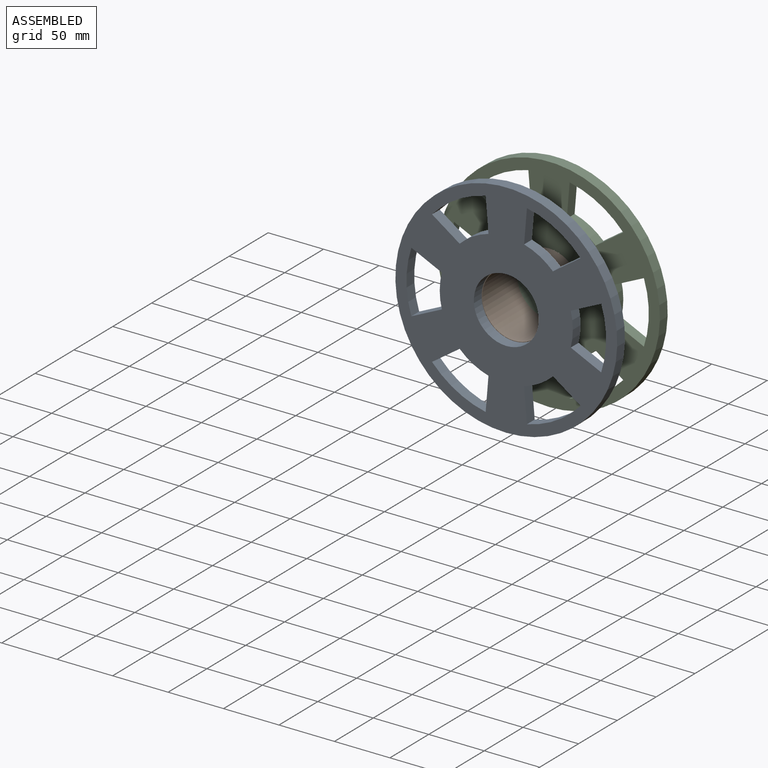
[diagram: assembled view]
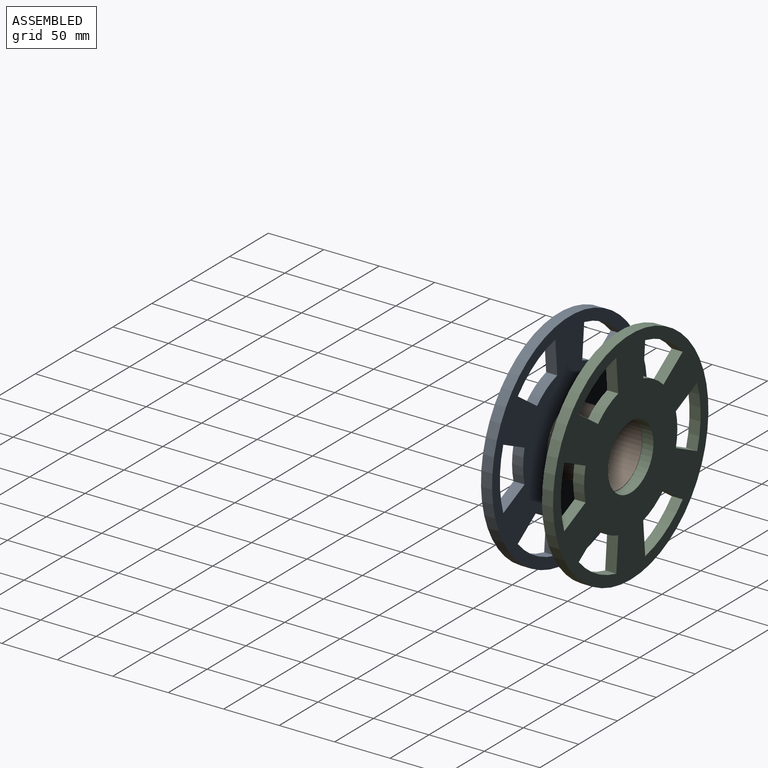
[diagram: assembled view, second angle]
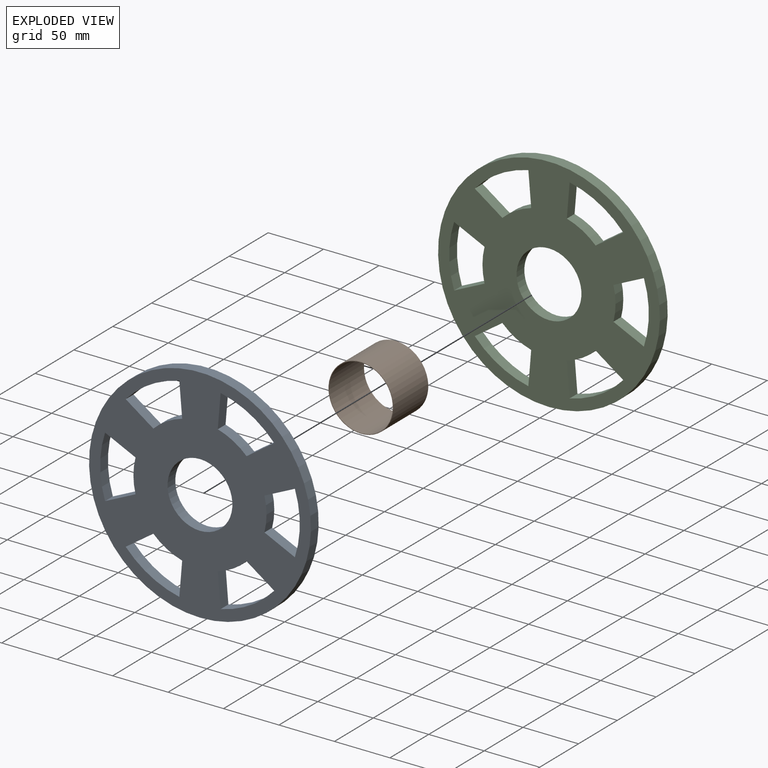
[diagram: exploded view]
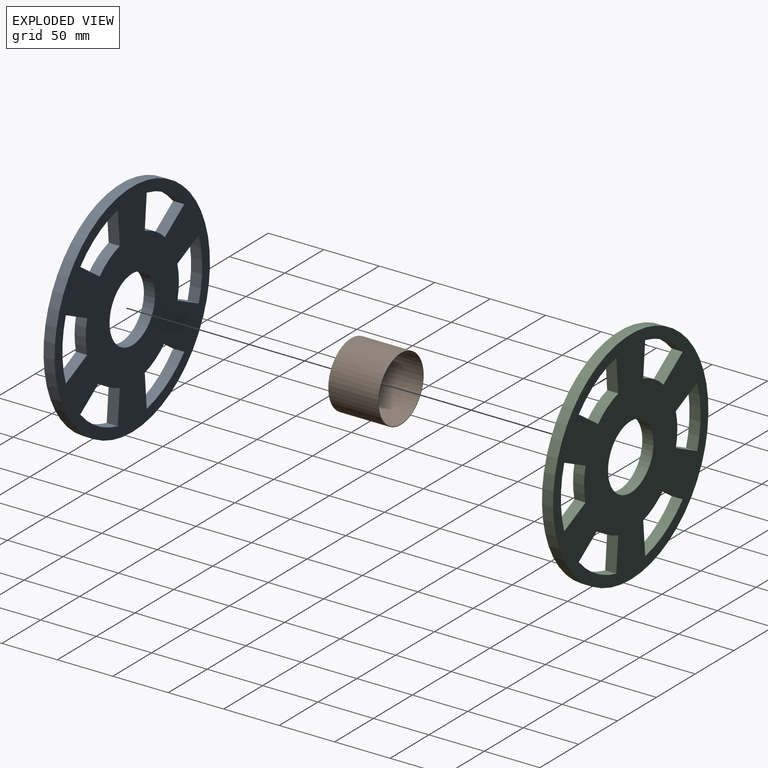
[diagram: exploded view, second angle]
ASSEMBLY  parts=3 mates=2
PART A: 28 faces, bbox 200x10x200 mm
  f0: plane 200x200mm, normal (0,-1,0), area 20889.1mm2, adj f2,f3,f4,f5,f6,f7,f8,f9
  f1: plane 200x200mm, normal (0,1,0), area 20889.1mm2, adj f2,f3,f4,f5,f6,f7,f8,f9
  f2: cylinder r=29.25mm len=58.5mm, axis (0,1,0), area 1837.8mm2, adj f0,f1
  f3: cylinder r=100mm len=200mm, axis (0,1,0), area 6283.2mm2, adj f0,f1
  f4: plane 27.47x12.91mm, normal (-0.43,0,-0.9), area 303.5mm2, adj f0,f1,f5,f7
  f5: cylinder r=90mm len=55.83mm, axis (0,-1,0), area 567.6mm2, adj f0,f1,f4,f6
  f6: plane 27.47x12.91mm, normal (-0.43,0,0.9), area 303.5mm2, adj f0,f1,f5,f7
  f7: cylinder r=60mm len=30mm, axis (0,-1,0), area 303.2mm2, adj f0,f1,f4,f6
  f8: plane 24.92x17.33mm, normal (0.57,0,-0.82), area 303.5mm2, adj f0,f1,f9,f11
  f9: cylinder r=90mm len=48.35mm, axis (0,-1,0), area 567.6mm2, adj f0,f1,f8,f10
  f10: plane 30.24x10mm, normal (-1,0,0.08), area 303.5mm2, adj f0,f1,f9,f11
  f11: cylinder r=60mm len=25.98mm, axis (0,-1,0), area 303.2mm2, adj f0,f1,f8,f10
  f12: plane 30.24x10mm, normal (1,0,0.08), area 303.5mm2, adj f0,f1,f13,f15
  f13: cylinder r=90mm len=48.35mm, axis (0,-1,0), area 567.6mm2, adj f0,f1,f12,f14
  f14: plane 24.92x17.33mm, normal (-0.57,0,-0.82), area 303.5mm2, adj f0,f1,f13,f15
  f15: cylinder r=60mm len=25.98mm, axis (0,-1,0), area 303.2mm2, adj f0,f1,f12,f14
  f16: plane 27.47x12.91mm, normal (0.43,0,0.9), area 303.5mm2, adj f0,f1,f17,f19
  f17: cylinder r=90mm len=55.83mm, axis (0,-1,0), area 567.6mm2, adj f0,f1,f16,f18
  f18: plane 27.47x12.91mm, normal (0.43,0,-0.9), area 303.5mm2, adj f0,f1,f17,f19
  f19: cylinder r=60mm len=30mm, axis (0,-1,0), area 303.2mm2, adj f0,f1,f16,f18
  f20: plane 24.92x17.33mm, normal (-0.57,0,0.82), area 303.5mm2, adj f0,f1,f21,f23
  f21: cylinder r=90mm len=48.35mm, axis (0,-1,0), area 567.6mm2, adj f0,f1,f20,f22
  f22: plane 30.24x10mm, normal (1,0,-0.08), area 303.5mm2, adj f0,f1,f21,f23
  f23: cylinder r=60mm len=25.98mm, axis (0,-1,0), area 303.2mm2, adj f0,f1,f20,f22
  f24: plane 30.24x10mm, normal (-1,0,-0.08), area 303.5mm2, adj f0,f1,f25,f27
  f25: cylinder r=90mm len=48.35mm, axis (0,-1,0), area 567.6mm2, adj f0,f1,f24,f26
  f26: plane 24.92x17.33mm, normal (0.57,0,0.82), area 303.5mm2, adj f0,f1,f25,f27
  f27: cylinder r=60mm len=25.98mm, axis (0,-1,0), area 303.2mm2, adj f0,f1,f24,f26
PART B: 4 faces, bbox 58.5x45x58.5 mm
  f0: cylinder r=28.75mm len=57.5mm, axis (0,1,0), area 8128.9mm2, adj f2,f3
  f1: cylinder r=29.25mm len=58.5mm, axis (0,1,0), area 8270.2mm2, adj f2,f3
  f2: plane 58.5x58.5mm, normal (0,-1,0), area 91.1mm2, adj f0,f1
  f3: plane 58.5x58.5mm, normal (0,1,0), area 91.1mm2, adj f0,f1
PART C: 28 faces, bbox 200x10x200 mm
  f0: plane 200x200mm, normal (0,1,0), area 20889.1mm2, adj f2,f3,f4,f5,f6,f7,f8,f9
  f1: plane 200x200mm, normal (0,-1,0), area 20889.1mm2, adj f2,f3,f4,f5,f6,f7,f8,f9
  f2: cylinder r=29.25mm len=58.5mm, axis (0,-1,0), area 1837.8mm2, adj f0,f1
  f3: cylinder r=100mm len=200mm, axis (0,-1,0), area 6283.2mm2, adj f0,f1
  f4: plane 27.47x12.91mm, normal (-0.43,0,-0.9), area 303.5mm2, adj f0,f1,f5,f7
  f5: cylinder r=60mm len=30mm, axis (0,1,0), area 303.2mm2, adj f0,f1,f4,f6
  f6: plane 27.47x12.91mm, normal (-0.43,0,0.9), area 303.5mm2, adj f0,f1,f5,f7
  f7: cylinder r=90mm len=55.83mm, axis (0,1,0), area 567.6mm2, adj f0,f1,f4,f6
  f8: plane 30.24x10mm, normal (-1,0,-0.08), area 303.5mm2, adj f0,f1,f9,f11
  f9: cylinder r=60mm len=25.98mm, axis (0,1,0), area 303.2mm2, adj f0,f1,f8,f10
  f10: plane 24.92x17.33mm, normal (0.57,0,0.82), area 303.5mm2, adj f0,f1,f9,f11
  f11: cylinder r=90mm len=48.35mm, axis (0,1,0), area 567.6mm2, adj f0,f1,f8,f10
  f12: plane 24.92x17.33mm, normal (-0.57,0,0.82), area 303.5mm2, adj f0,f1,f13,f15
  f13: cylinder r=60mm len=25.98mm, axis (0,1,0), area 303.2mm2, adj f0,f1,f12,f14
  f14: plane 30.24x10mm, normal (1,0,-0.08), area 303.5mm2, adj f0,f1,f13,f15
  f15: cylinder r=90mm len=48.35mm, axis (0,1,0), area 567.6mm2, adj f0,f1,f12,f14
  f16: plane 27.47x12.91mm, normal (0.43,0,0.9), area 303.5mm2, adj f0,f1,f17,f19
  f17: cylinder r=60mm len=30mm, axis (0,1,0), area 303.2mm2, adj f0,f1,f16,f18
  f18: plane 27.47x12.91mm, normal (0.43,0,-0.9), area 303.5mm2, adj f0,f1,f17,f19
  f19: cylinder r=90mm len=55.83mm, axis (0,1,0), area 567.6mm2, adj f0,f1,f16,f18
  f20: plane 30.24x10mm, normal (1,0,0.08), area 303.5mm2, adj f0,f1,f21,f23
  f21: cylinder r=60mm len=25.98mm, axis (0,1,0), area 303.2mm2, adj f0,f1,f20,f22
  f22: plane 24.92x17.33mm, normal (-0.57,0,-0.82), area 303.5mm2, adj f0,f1,f21,f23
  f23: cylinder r=90mm len=48.35mm, axis (0,1,0), area 567.6mm2, adj f0,f1,f20,f22
  f24: plane 24.92x17.33mm, normal (0.57,0,-0.82), area 303.5mm2, adj f0,f1,f25,f27
  f25: cylinder r=60mm len=25.98mm, axis (0,1,0), area 303.2mm2, adj f0,f1,f24,f26
  f26: plane 30.24x10mm, normal (-1,0,0.08), area 303.5mm2, adj f0,f1,f25,f27
  f27: cylinder r=90mm len=48.35mm, axis (0,1,0), area 567.6mm2, adj f0,f1,f24,f26
PLACE A t=(0,-38.1,9.03)mm
PLACE B t=(0,-38.1,9.03)mm
PLACE C t=(0,-33.1,9.03)mm
MATE fastened C.f2 <-> B.f0  axis (0,-1,0) through (0,-38.1,9.03)mm
MATE fastened A.f2 <-> B.f0  axis (0,1,0) through (0,-83.1,9.03)mm
